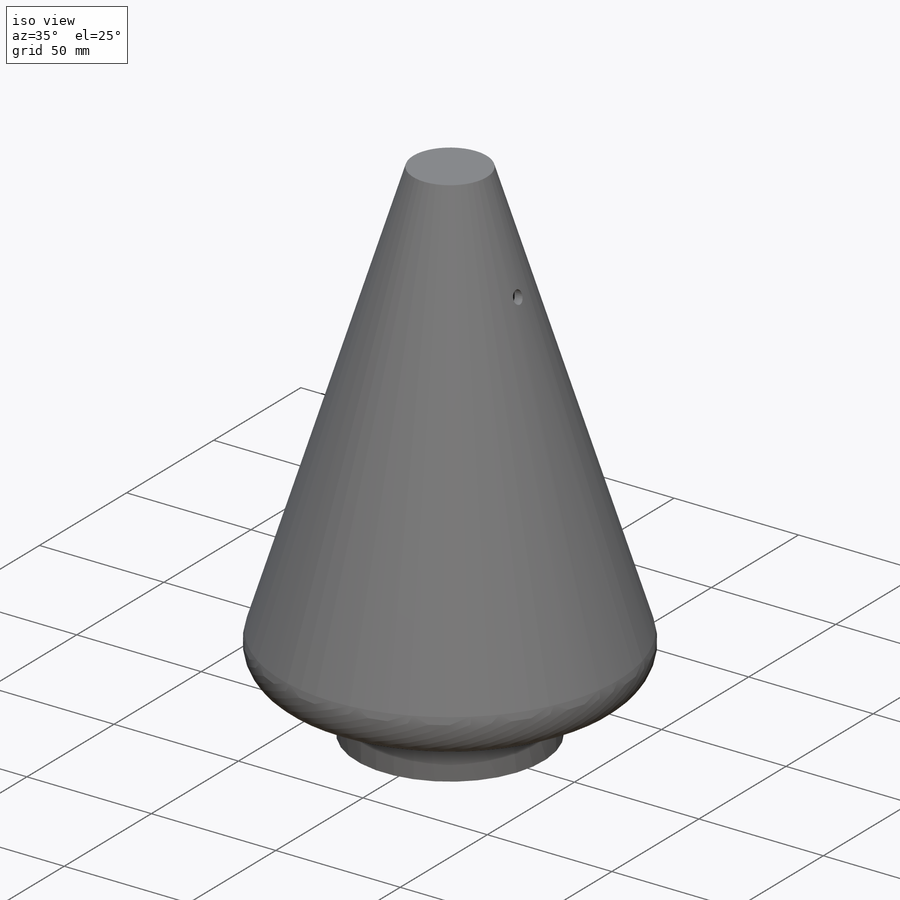
[diagram: iso view]
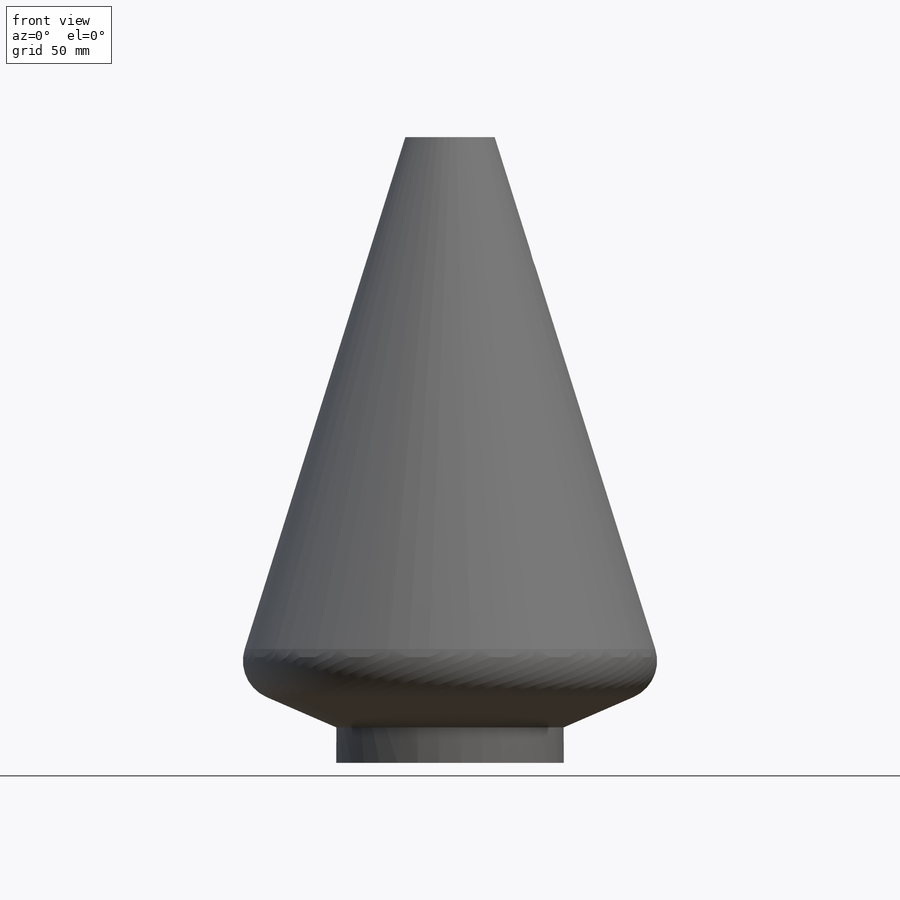
[diagram: front view]
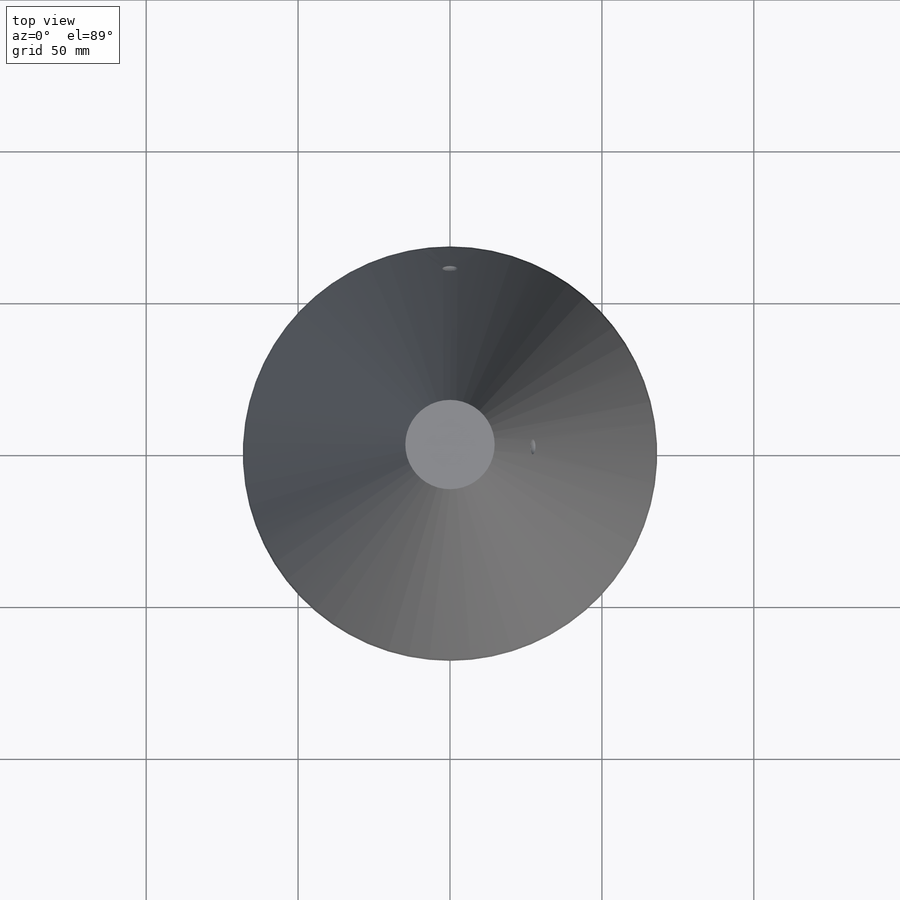
[diagram: top view]
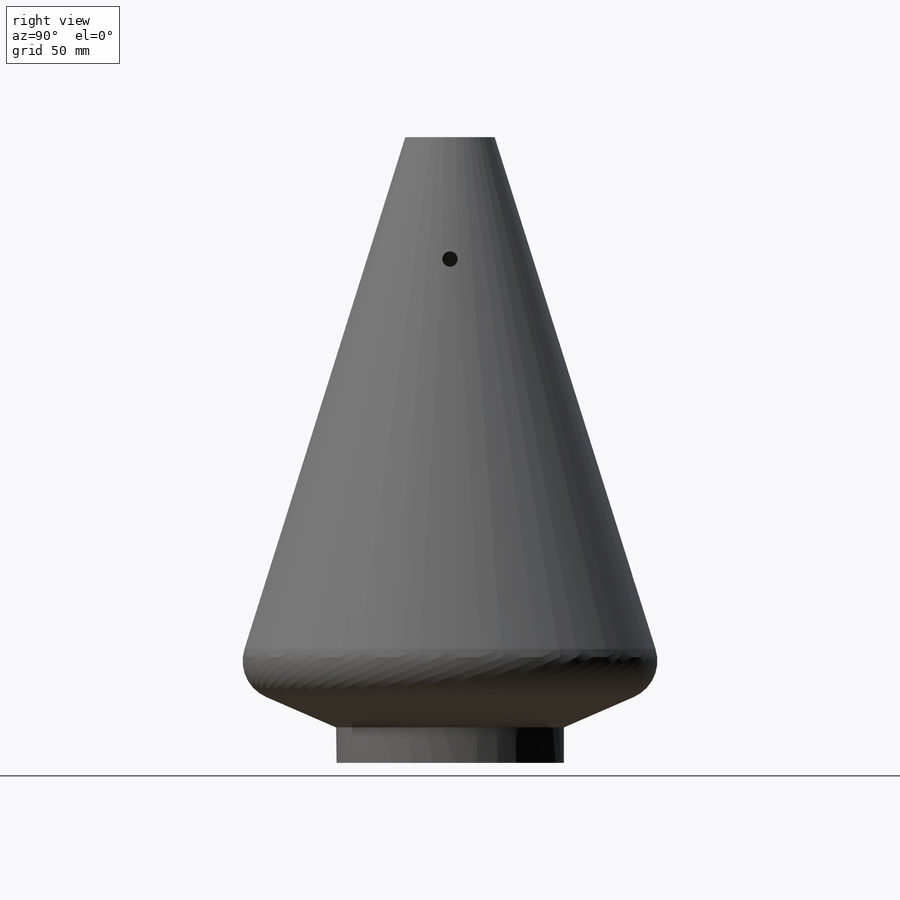
[diagram: right view]
SOLIDWORKS PART (.sldprt)
format: sldprt  version: not decoded by parser v0  size: 226,816 bytes
history: native  units: mm
features: sketch x4, plane x3, cut_extrude x3, material x1, revolve x1 (+8 scaffold rows collapsed)
feature tree (20):
  scaffold x8  (default folders/planes/origin — collapsed)
  material  "Material <não especificado>"
  plane  "Plano frontal"
  plane  "Plano superior"
  plane  "Plano direito"
  sketch  "Esboço1"  dims[c1.D6=10.0mm c1.D1=200.0mm c1.D2=67.5mm c1.D3=25.0mm c1.D4=10.0mm c1.D5=12.5mm c1.D7=75.0mm c1.D8=~69.250106mm c2.D7=37.5mm c2.D8=75.0mm c2.D9=3.0mm c2.D11=37.5mm c2.D10=3.0mm]
  revolve  "Revolução1"  Angle=360deg
  sketch  "Esboço2"  dims[D1=5.0mm]
  cut_extrude  "Corte-extrusão1"  [1 undecoded]
  sketch  "Esboço4"  dims[D1=5.0mm]
  cut_extrude  "Corte-extrusão2"  Depth=50mm
  sketch  "Esboço5"  dims[D1=5.0mm]
  cut_extrude  "Corte-extrusão3"  Depth=110mm
decode coverage: 7 of 8 modeling features carry decoded parameters
note: ~ marks probable driven/reference dimensions
note: 1 parameter value undecoded
note: suppression state not decoded; provenance and decode notes live in map.json
